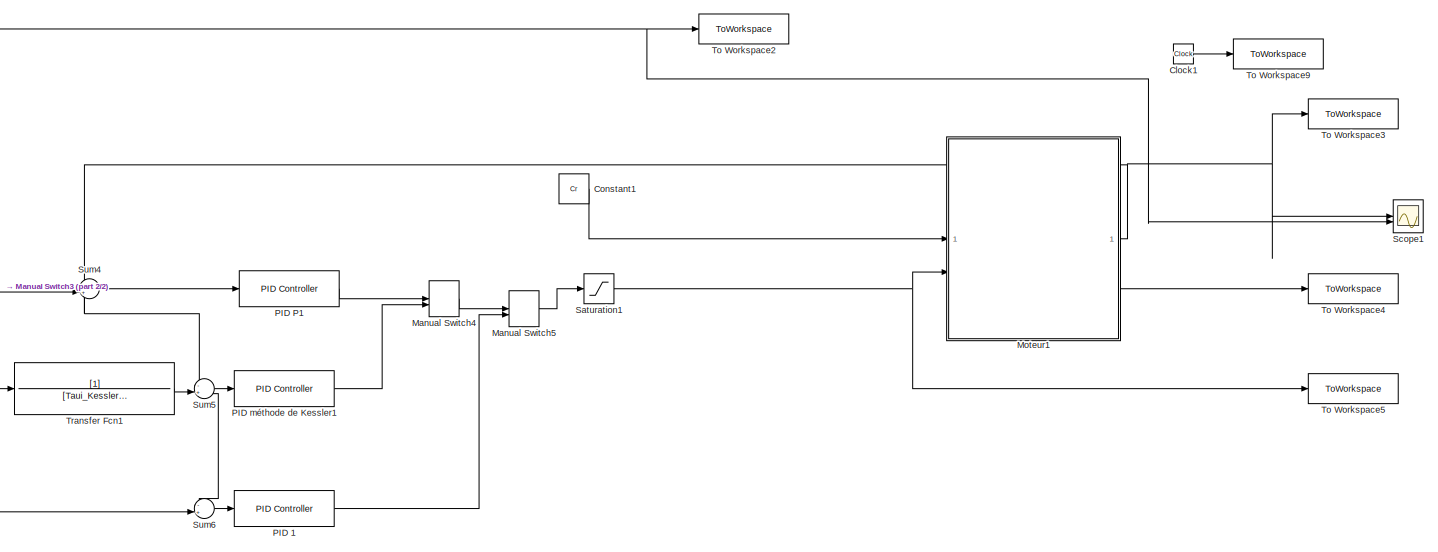
[diagram: root canvas - part 1/2, most of the canvas]
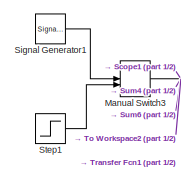
[diagram: root canvas - part 2/2, middle left region]
MODEL slx_24ed81251c21
KIND model
CONFIG AbsTol = auto
CONFIG EnableMultiTasking = off
CONFIG FixedStep = 1e-4
CONFIG MaxStep = auto
CONFIG MinStep = auto
CONFIG RelTol = 1e-3
CONFIG SampleTimeConstraint = Unconstrained
CONFIG SolverName = FixedStepAuto
CONFIG StartTime = 0.0
CONFIG StopTime = 40
BLOCK [Clock] Clock1
BLOCK [Constant] Constant1
  Value = Cr
BLOCK [ManualSwitch] Manual Switch3
  CurrentSetting = 0
BLOCK [ManualSwitch] Manual Switch4
  CurrentSetting = 0
BLOCK [ManualSwitch] Manual Switch5
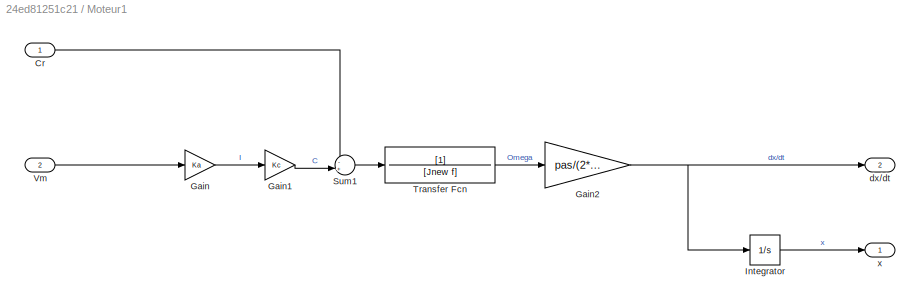
BLOCK [SubSystem] Moteur1
BLOCK [Inport] Moteur1/Cr
BLOCK [Gain] Moteur1/Gain
  Gain = Ka
BLOCK [Gain] Moteur1/Gain1
  Gain = Kc
BLOCK [Gain] Moteur1/Gain2
  Gain = pas/(2*pi)
BLOCK [Integrator] Moteur1/Integrator
BLOCK [Sum] Moteur1/Sum1
  Inputs = -+|
BLOCK [TransferFcn] Moteur1/Transfer Fcn
  Denominator = [Jnew f]
BLOCK [Inport] Moteur1/Vm
  Port = 2
BLOCK [Outport] Moteur1/dx//dt
  Port = 2
BLOCK [Outport] Moteur1/x
BLOCK [Reference] PID 1  REF=slpidlib/PID Controller
  LibrarySourceBlock = simulink/Continuous/PID Controller
  SourceBlock = slpidlib/PID Controller
  SourceType = PID 1dof
BLOCK [Reference] PID P1  REF=slpidlib/PID Controller
  LibrarySourceBlock = simulink/Continuous/PID Controller
  SourceBlock = slpidlib/PID Controller
  SourceType = PID 1dof
BLOCK [Reference] PID méthode de Kessler1  REF=slpidlib/PID Controller
  LibrarySourceBlock = simulink/Continuous/PID Controller
  SourceBlock = slpidlib/PID Controller
  SourceType = PID 1dof
BLOCK [Saturate] Saturation1
  LowerLimit = -Vm
  UpperLimit = Vm
BLOCK [Scope] Scope1
  Floating = off
  NumInputPorts = 2
  ScopeSpecificationString = Simulink.scopes.TimeScopeBlockCfg('CurrentConfiguration', extmgr.ConfigurationSet(extmgr.Configuration('Core','General UI',true),extmgr.Configuration('Core','Source UI',true),extmgr.Configuration('Sources','WiredSimulink',true,'DataLoggingVariableName','ScopeData1'),extmgr.Configuration('Visuals','Time Domain',true,'SerializedDisplays',{struct('MinYLimReal','-0.04433','MaxYLimReal','0.399','YLabel...<+1377ch>
BLOCK [SignalGenerator] Signal Generator1
  Amplitude = 0.35
  Frequency = 0.5
  Units = rad/sec
  WaveForm = square
BLOCK [Step] Step1
  After = 0.35
  SampleTime = 0
  Time = 0
BLOCK [Sum] Sum4
  Inputs = -+|
BLOCK [Sum] Sum5
  Inputs = -+|
BLOCK [Sum] Sum6
  Inputs = -+|
BLOCK [ToWorkspace] To Workspace2
  FixptAsFi = on
  MaxDataPoints = inf
  SampleTime = -1
  SaveFormat = Timeseries
  VariableName = consigne
BLOCK [ToWorkspace] To Workspace3
  FixptAsFi = on
  MaxDataPoints = inf
  SampleTime = -1
  SaveFormat = Timeseries
  VariableName = position
BLOCK [ToWorkspace] To Workspace4
  FixptAsFi = on
  MaxDataPoints = inf
  SampleTime = -1
  SaveFormat = Timeseries
  VariableName = vitesse
BLOCK [ToWorkspace] To Workspace5
  FixptAsFi = on
  MaxDataPoints = inf
  SampleTime = -1
  SaveFormat = Timeseries
  VariableName = commande
BLOCK [ToWorkspace] To Workspace9
  FixptAsFi = on
  MaxDataPoints = inf
  SampleTime = -1
  SaveFormat = Timeseries
  VariableName = time
BLOCK [TransferFcn] Transfer Fcn1
  Denominator = [Taui_Kessler 1]
LINE Clock1:1 -> To Workspace9:1
LINE Constant1:1 -> Moteur1:1
NET Manual Switch3:1 -> Scope1:2, Sum4:2, Sum6:2, To Workspace2:1, Transfer Fcn1:1
LINE Manual Switch4:1 -> Manual Switch5:1
LINE Manual Switch5:1 -> Saturation1:1
LINE Moteur1/Cr:1 -> Moteur1/Sum1:1
LINE Moteur1/Gain1:1 -> Moteur1/Sum1:2
NET Moteur1/Gain2:1 -> Moteur1/Integrator:1, Moteur1/dx//dt:1
LINE Moteur1/Gain:1 -> Moteur1/Gain1:1
LINE Moteur1/Integrator:1 -> Moteur1/x:1
LINE Moteur1/Sum1:1 -> Moteur1/Transfer Fcn:1
LINE Moteur1/Transfer Fcn:1 -> Moteur1/Gain2:1
LINE Moteur1/Vm:1 -> Moteur1/Gain:1
NET Moteur1:1 -> Scope1:1, Sum4:1, Sum5:1, Sum6:1, To Workspace3:1
LINE Moteur1:2 -> To Workspace4:1
LINE PID 1:1 -> Manual Switch5:2
LINE PID P1:1 -> Manual Switch4:1
LINE PID méthode de Kessler1:1 -> Manual Switch4:2
NET Saturation1:1 -> Moteur1:2, To Workspace5:1
LINE Signal Generator1:1 -> Manual Switch3:1
LINE Step1:1 -> Manual Switch3:2
LINE Sum4:1 -> PID P1:1
LINE Sum5:1 -> PID méthode de Kessler1:1
LINE Sum6:1 -> PID 1:1
LINE Transfer Fcn1:1 -> Sum5:2
note: NET lines group one-source signal fan-out (src -> all destinations, sorted); 1:1 wires keep LINE
